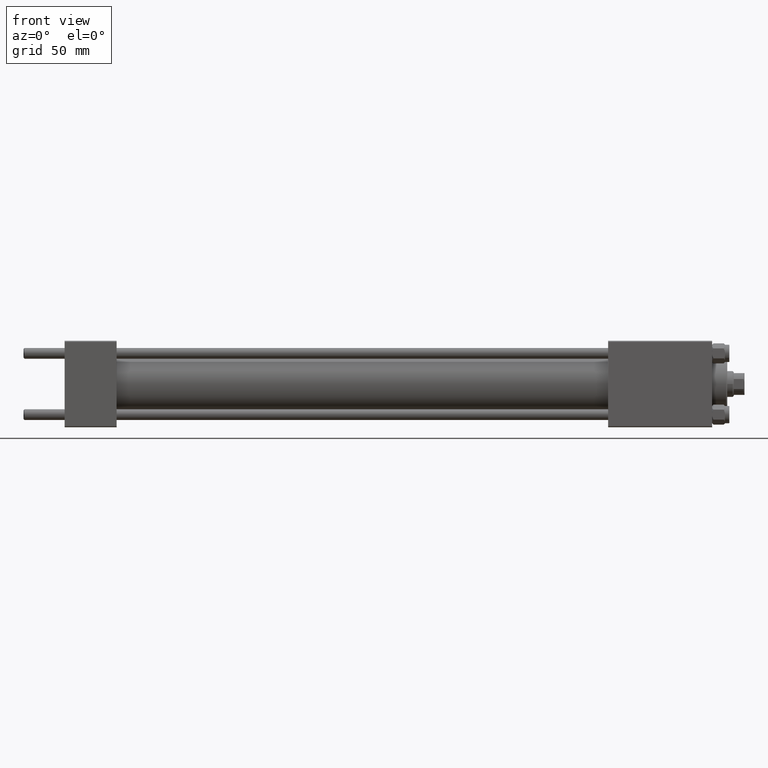
[diagram: clean part render]
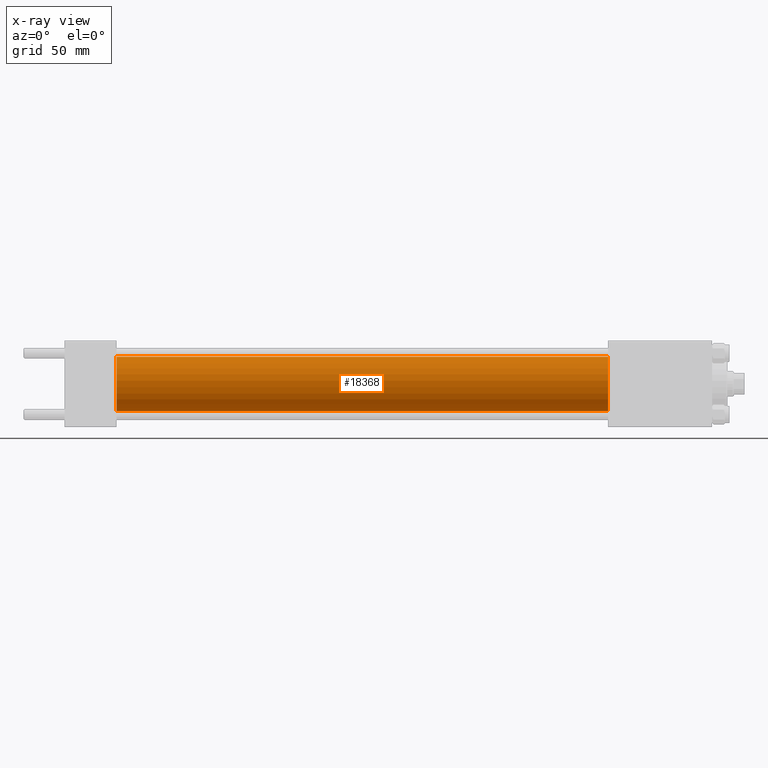
[diagram: x-ray — body ghosted, one internal face saturated and labeled with its STEP entity id]
A machine part, front view, then the same camera in x-ray: the body is ghosted and one INTERNAL B-rep face — a face not visible from any outside direction — is saturated and labeled: STEP entity #18368.
In plain terms, the highlighted cylindrical surface (edge-blend (fillet) strip) has radius 12.5 mm, axis along (-1, -0, -0).
Its self-contained STEP definition (entity closure, byte-faithful):
#445 = DIRECTION ( 'NONE',  ( -1.000000000000000000, -0.000000000000000000, -0.000000000000000000 ) ) ;
#1787 = DIRECTION ( 'NONE',  ( 0.000000000000000000, 0.000000000000000000, -1.000000000000000000 ) ) ;
#6257 = LINE ( 'NONE', #17351, #13335 ) ;
#7518 = DIRECTION ( 'NONE',  ( 0.000000000000000000, 0.000000000000000000, 1.000000000000000000 ) ) ;
#9102 = DIRECTION ( 'NONE',  ( 1.000000000000000000, 0.000000000000000000, 0.000000000000000000 ) ) ;
#9809 = LINE ( 'NONE', #25410, #20728 ) ;
#12628 = ORIENTED_EDGE ( 'NONE', *, *, #28624, .F. ) ;
#13335 = VECTOR ( 'NONE', #21877, 1000.000000000000000 ) ;
#13365 = CIRCLE ( 'NONE', #48782, 12.49999999999999645 ) ;
#15318 = FACE_OUTER_BOUND ( 'NONE', #26302, .T. ) ;
#15764 = CIRCLE ( 'NONE', #34267, 12.49999999999999645 ) ;
#17351 = CARTESIAN_POINT ( 'NONE',  ( 251.0000000000000000, 1.530808498934190732E-15, -12.49999999999999645 ) ) ;
#18368 = ADVANCED_FACE ( 'NONE', ( #15318 ), #26397, .F. ) ;
#20728 = VECTOR ( 'NONE', #41029, 1000.000000000000000 ) ;
#21363 = DIRECTION ( 'NONE',  ( 1.000000000000000000, 0.000000000000000000, 0.000000000000000000 ) ) ;
#21877 = DIRECTION ( 'NONE',  ( -1.000000000000000000, -0.000000000000000000, -0.000000000000000000 ) ) ;
#24264 = EDGE_CURVE ( 'NONE', #32659, #31600, #15764, .T. ) ;
#25390 = CARTESIAN_POINT ( 'NONE',  ( 251.0000000000000000, 0.000000000000000000, 0.000000000000000000 ) ) ;
#25410 = CARTESIAN_POINT ( 'NONE',  ( 251.0000000000000000, 0.000000000000000000, 12.49999999999999645 ) ) ;
#26302 = EDGE_LOOP ( 'NONE', ( #29858, #40745, #12628, #28305 ) ) ;
#26397 = CYLINDRICAL_SURFACE ( 'NONE', #32691, 12.49999999999999645 ) ;
#27978 = CARTESIAN_POINT ( 'NONE',  ( 24.00000000000000000, 0.000000000000000000, 0.000000000000000000 ) ) ;
#28015 = EDGE_CURVE ( 'NONE', #31600, #38361, #6257, .T. ) ;
#28305 = ORIENTED_EDGE ( 'NONE', *, *, #32452, .F. ) ;
#28624 = EDGE_CURVE ( 'NONE', #47575, #38361, #13365, .T. ) ;
#29858 = ORIENTED_EDGE ( 'NONE', *, *, #24264, .T. ) ;
#31600 = VERTEX_POINT ( 'NONE', #47547 ) ;
#31976 = CARTESIAN_POINT ( 'NONE',  ( 24.00000000000000000, 1.530808498934190732E-15, -12.49999999999999645 ) ) ;
#32452 = EDGE_CURVE ( 'NONE', #32659, #47575, #9809, .T. ) ;
#32659 = VERTEX_POINT ( 'NONE', #36427 ) ;
#32691 = AXIS2_PLACEMENT_3D ( 'NONE', #42251, #445, #7518 ) ;
#34267 = AXIS2_PLACEMENT_3D ( 'NONE', #25390, #21363, #36727 ) ;
#36427 = CARTESIAN_POINT ( 'NONE',  ( 251.0000000000000000, 0.000000000000000000, 12.49999999999999645 ) ) ;
#36727 = DIRECTION ( 'NONE',  ( 0.000000000000000000, 0.000000000000000000, -1.000000000000000000 ) ) ;
#38361 = VERTEX_POINT ( 'NONE', #31976 ) ;
#40745 = ORIENTED_EDGE ( 'NONE', *, *, #28015, .T. ) ;
#41029 = DIRECTION ( 'NONE',  ( -1.000000000000000000, -0.000000000000000000, -0.000000000000000000 ) ) ;
#42251 = CARTESIAN_POINT ( 'NONE',  ( 251.0000000000000000, 0.000000000000000000, 0.000000000000000000 ) ) ;
#44152 = CARTESIAN_POINT ( 'NONE',  ( 24.00000000000000000, 0.000000000000000000, 12.49999999999999645 ) ) ;
#47547 = CARTESIAN_POINT ( 'NONE',  ( 251.0000000000000000, 1.530808498934190732E-15, -12.49999999999999645 ) ) ;
#47575 = VERTEX_POINT ( 'NONE', #44152 ) ;
#48782 = AXIS2_PLACEMENT_3D ( 'NONE', #27978, #9102, #1787 ) ;